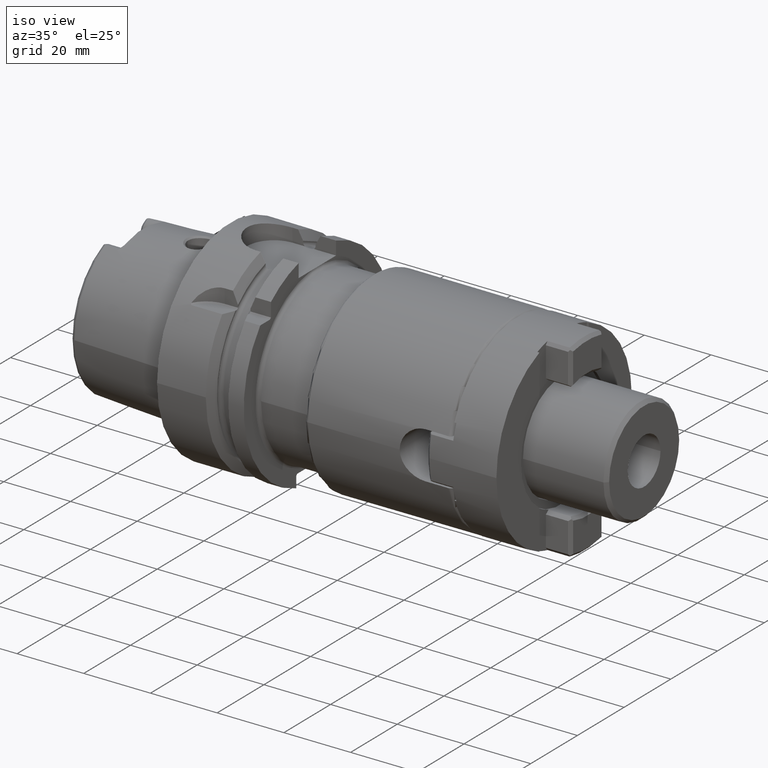
[diagram: clean part render]
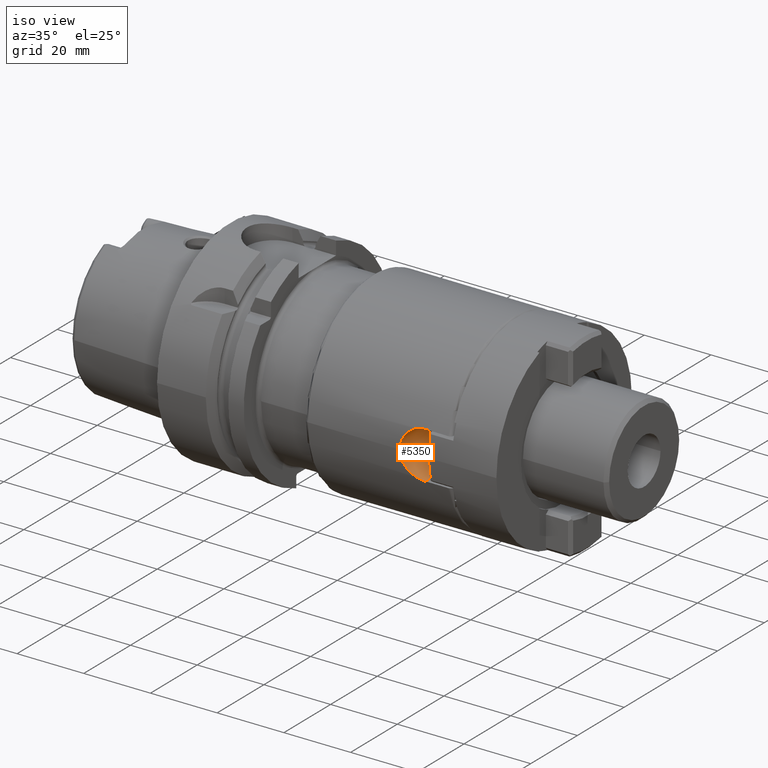
[diagram: same view with one face highlighted and labeled with its STEP entity id]
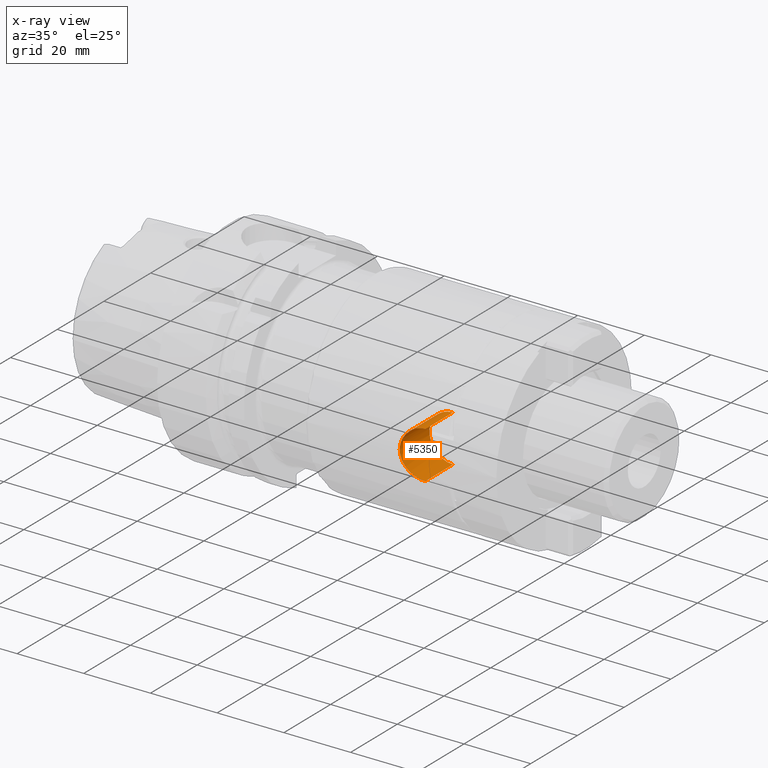
[diagram: x-ray of the same camera — body ghosted, the highlighted face saturated]
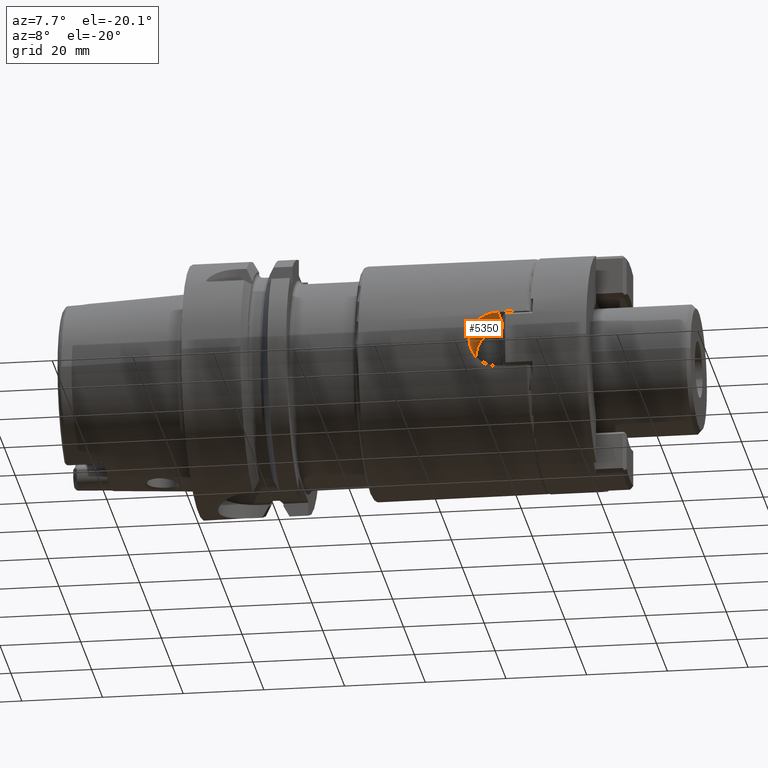
[diagram: same view with one face highlighted and labeled with its STEP entity id]
A machine part, iso view. The second image highlights one B-rep face of the part: STEP entity #5350.
The next image is the same camera in x-ray: the body ghosted, the highlighted face saturated — about 0% of this face is hidden behind the body in this view.
A second angle (auxiliary view) of the same face is appended — the face is thin or edge-on in the first view.
In plain terms, the highlighted cylindrical surface (edge-blend (fillet) strip) has radius 7.05 mm, axis along (0, 1, 0).
Its self-contained STEP definition (entity closure, byte-faithful):
#1548=CARTESIAN_POINT('',(7.1E1,-2.9E1,-1.368321328131E-14));
#1549=CARTESIAN_POINT('',(7.1E1,-2.9E1,2.812220679874E-1));
#1550=CARTESIAN_POINT('',(7.103330711335E1,-2.899187432210E1,
8.404467754962E-1));
#1551=CARTESIAN_POINT('',(7.118472684693E1,-2.895543793573E1,1.676379445848E0));
#1552=CARTESIAN_POINT('',(7.143469994552E1,-2.889691385787E1,2.486399055996E0));
#1553=CARTESIAN_POINT('',(7.178418114583E1,-2.881855061333E1,3.268974479794E0));
#1554=CARTESIAN_POINT('',(7.222516446948E1,-2.872543031932E1,4.002573666862E0));
#1555=CARTESIAN_POINT('',(7.275788457570E1,-2.862165486566E1,4.684459317567E0));
#1556=CARTESIAN_POINT('',(7.336644828543E1,-2.851486353950E1,5.292912823822E0));
#1557=CARTESIAN_POINT('',(7.404846414873E1,-2.841030172384E1,5.825574450120E0));
#1558=CARTESIAN_POINT('',(7.478264689309E1,-2.831577521634E1,6.266657373136E0));
#1559=CARTESIAN_POINT('',(7.556470916932E1,-2.823585698224E1,6.615708714385E0));
#1560=CARTESIAN_POINT('',(7.637512335039E1,-2.817581504620E1,6.865641440629E0));
#1561=CARTESIAN_POINT('',(7.721037912692E1,-2.813837678853E1,7.016750011503E0));
#1562=CARTESIAN_POINT('',(7.776900731331E1,-2.813001066477E1,7.05E0));
#1563=CARTESIAN_POINT('',(7.805E1,-2.813001066477E1,7.05E0));
#1574=CARTESIAN_POINT('',(7.805E1,-2.813001066477E1,-7.05E0));
#1575=CARTESIAN_POINT('',(7.776900334868E1,-2.813001066477E1,-7.05E0));
#1576=CARTESIAN_POINT('',(7.721036962182E1,-2.813837655319E1,
-7.016751104206E0));
#1577=CARTESIAN_POINT('',(7.637506342135E1,-2.817581882627E1,
-6.865625730294E0));
#1578=CARTESIAN_POINT('',(7.556470454007E1,-2.823585714802E1,
-6.615708539759E0));
#1579=CARTESIAN_POINT('',(7.478255720834E1,-2.831578554207E1,
-6.266610582978E0));
#1580=CARTESIAN_POINT('',(7.404846691705E1,-2.841030175988E1,
-5.825573770091E0));
#1581=CARTESIAN_POINT('',(7.336641286445E1,-2.851486909506E1,
-5.292883970806E0));
#1582=CARTESIAN_POINT('',(7.275787728686E1,-2.862165655839E1,
-4.684446066254E0));
#1583=CARTESIAN_POINT('',(7.222518265737E1,-2.872542654969E1,
-4.002603107454E0));
#1584=CARTESIAN_POINT('',(7.178417685748E1,-2.881855162621E1,
-3.268958951815E0));
#1585=CARTESIAN_POINT('',(7.143474517989E1,-2.889690353973E1,
-2.486520418641E0));
#1586=CARTESIAN_POINT('',(7.118472837527E1,-2.895543750341E1,
-1.676383255629E0));
#1587=CARTESIAN_POINT('',(7.103333102847E1,-2.899186856532E1,
-8.406184491525E-1));
#1588=CARTESIAN_POINT('',(7.1E1,-2.9E1,-2.812924357340E-1));
#1589=CARTESIAN_POINT('',(7.1E1,-2.9E1,-1.368321328131E-14));
#1630=DIRECTION('',(0.E0,1.E0,0.E0));
#1631=VECTOR('',#1630,1.188001066477E1);
#1632=CARTESIAN_POINT('',(7.805E1,-2.813001066477E1,-7.05E0));
#1633=LINE('',#1632,#1631);
#1642=CARTESIAN_POINT('',(7.805E1,-1.625E1,0.E0));
#1643=DIRECTION('',(0.E0,1.E0,0.E0));
#1644=DIRECTION('',(0.E0,0.E0,-1.E0));
#1645=AXIS2_PLACEMENT_3D('',#1642,#1643,#1644);
#1647=DIRECTION('',(0.E0,1.E0,0.E0));
#1648=VECTOR('',#1647,1.188001066477E1);
#1649=CARTESIAN_POINT('',(7.805E1,-2.813001066477E1,7.05E0));
#1650=LINE('',#1649,#1648);
#3522=CARTESIAN_POINT('',(7.805E1,-1.625E1,-7.05E0));
#3523=CARTESIAN_POINT('',(7.805E1,-1.625E1,7.05E0));
#3524=VERTEX_POINT('',#3522);
#3525=VERTEX_POINT('',#3523);
#3530=CARTESIAN_POINT('',(7.805E1,-2.813001066477E1,-7.05E0));
#3531=VERTEX_POINT('',#3530);
#3532=CARTESIAN_POINT('',(7.805E1,-2.813001066477E1,7.05E0));
#3533=VERTEX_POINT('',#3532);
#3538=VERTEX_POINT('',#1548);
#5335=CARTESIAN_POINT('',(7.805E1,-2.9E1,0.E0));
#5336=DIRECTION('',(0.E0,1.E0,0.E0));
#5337=DIRECTION('',(1.E0,0.E0,0.E0));
#5338=AXIS2_PLACEMENT_3D('',#5335,#5336,#5337);
#5339=CYLINDRICAL_SURFACE('',#5338,7.05E0);
#5341=ORIENTED_EDGE('',*,*,#5340,.F.);
#5342=ORIENTED_EDGE('',*,*,#5309,.T.);
#5343=ORIENTED_EDGE('',*,*,#5294,.T.);
#5345=ORIENTED_EDGE('',*,*,#5344,.T.);
#5347=ORIENTED_EDGE('',*,*,#5346,.F.);
#5348=EDGE_LOOP('',(#5341,#5342,#5343,#5345,#5347));
#5349=FACE_OUTER_BOUND('',#5348,.F.);
#5350=ADVANCED_FACE('',(#5349),#5339,.F.);
#1564=B_SPLINE_CURVE_WITH_KNOTS('',3,(#1548,#1549,#1550,#1551,#1552,#1553,#1554,
#1555,#1556,#1557,#1558,#1559,#1560,#1561,#1562,#1563),.UNSPECIFIED.,.F.,.F.,(4,
1,1,1,1,1,1,1,1,1,1,1,1,4),(0.E0,7.692307692308E-2,1.538461538462E-1,
2.307692307692E-1,3.076923076923E-1,3.846153846154E-1,4.615384615385E-1,
5.384615384615E-1,6.153846153846E-1,6.923076923077E-1,7.692307692308E-1,
8.461538461538E-1,9.230769230769E-1,1.E0),.UNSPECIFIED.);
#1590=B_SPLINE_CURVE_WITH_KNOTS('',3,(#1574,#1575,#1576,#1577,#1578,#1579,#1580,
#1581,#1582,#1583,#1584,#1585,#1586,#1587,#1588,#1589),.UNSPECIFIED.,.F.,.F.,(4,
1,1,1,1,1,1,1,1,1,1,1,1,4),(0.E0,7.692307692308E-2,1.538461538462E-1,
2.307692307692E-1,3.076923076923E-1,3.846153846154E-1,4.615384615385E-1,
5.384615384615E-1,6.153846153846E-1,6.923076923077E-1,7.692307692308E-1,
8.461538461538E-1,9.230769230769E-1,1.E0),.UNSPECIFIED.);
#1646=CIRCLE('',#1645,7.05E0);
#5294=EDGE_CURVE('',#3538,#3533,#1564,.T.);
#5309=EDGE_CURVE('',#3531,#3538,#1590,.T.);
#5340=EDGE_CURVE('',#3531,#3524,#1633,.T.);
#5344=EDGE_CURVE('',#3533,#3525,#1650,.T.);
#5346=EDGE_CURVE('',#3524,#3525,#1646,.T.);